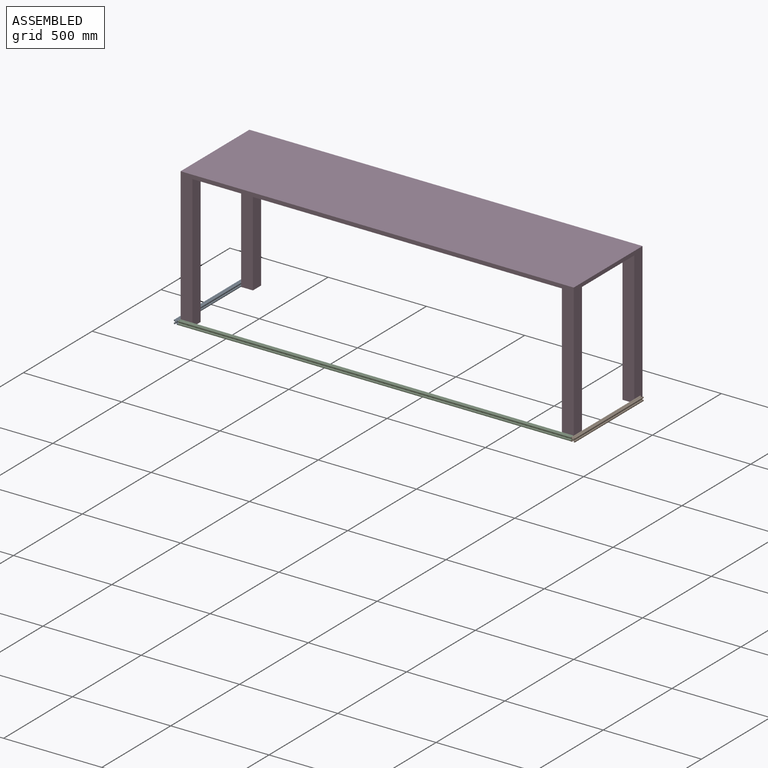
[diagram: assembled view]
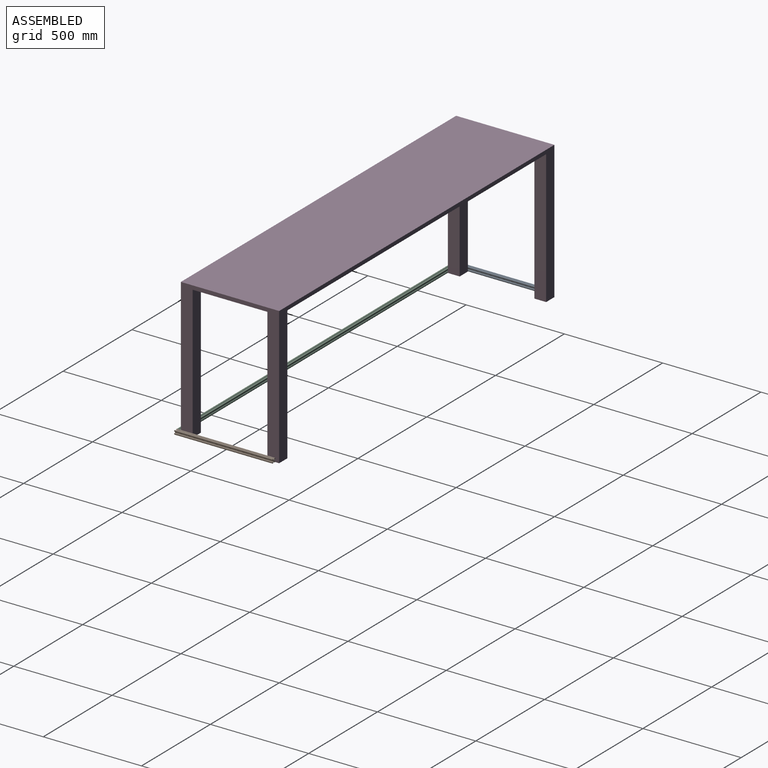
[diagram: assembled view, second angle]
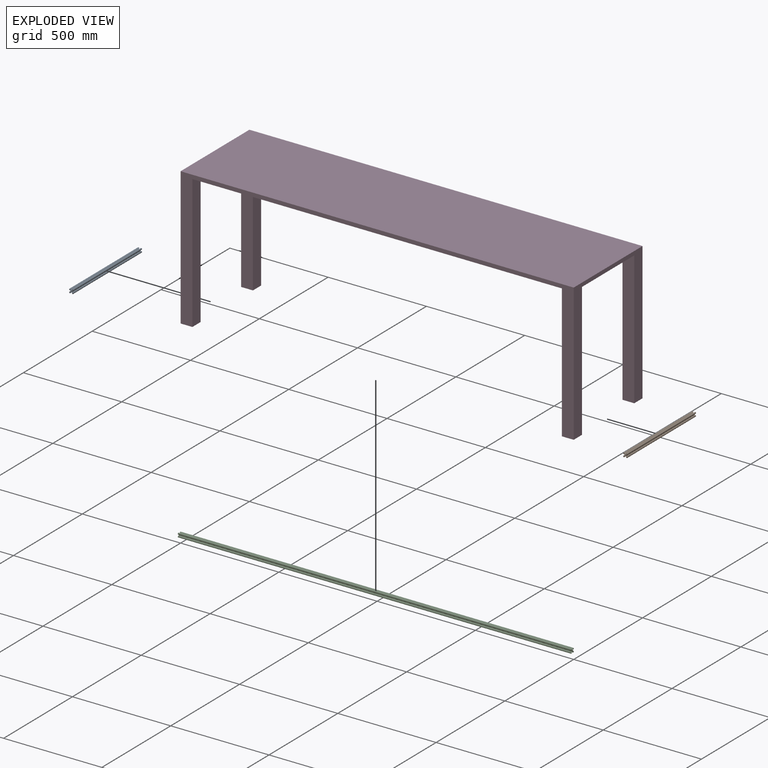
[diagram: exploded view]
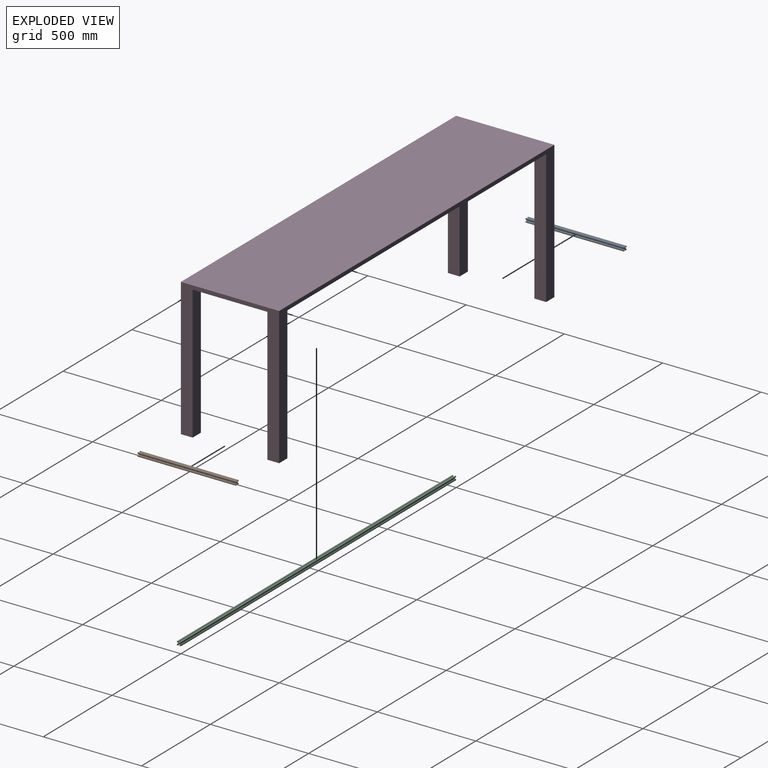
[diagram: exploded view, second angle]
ASSEMBLY  parts=4 mates=9
PART A: 63 faces, bbox 20x500x20 mm
  f0: plane 500x1.68mm, normal (0.71,0,0.71), area 1184.4mm2, adj f1,f16,f26,f62
  f1: plane 500x3.73mm, normal (0,0,1), area 1862.5mm2, adj f0,f16,f30,f62
  f2: plane 500x3.73mm, normal (-1,0,0), area 1862.5mm2, adj f3,f16,f30,f62
  f3: plane 500x1.68mm, normal (-0.71,0,-0.71), area 1184.4mm2, adj f2,f16,f27,f62
  f4: plane 500x1.68mm, normal (-0.71,0,0.71), area 1184.4mm2, adj f5,f16,f34,f62
  f5: plane 500x3.73mm, normal (-1,0,0), area 1862.5mm2, adj f4,f16,f38,f62
  f6: plane 500x3.73mm, normal (0,0,-1), area 1862.5mm2, adj f7,f16,f38,f62
  f7: plane 500x1.68mm, normal (0.71,0,-0.71), area 1184.4mm2, adj f6,f16,f35,f62
  f8: plane 500x1.68mm, normal (-0.71,0,-0.71), area 1184.4mm2, adj f9,f16,f42,f62
  f9: plane 500x3.73mm, normal (0,0,-1), area 1862.5mm2, adj f8,f16,f46,f62
  f10: plane 500x3.73mm, normal (1,0,0), area 1862.5mm2, adj f11,f16,f46,f62
  f11: plane 500x1.68mm, normal (0.71,0,0.71), area 1184.4mm2, adj f10,f16,f43,f62
  f12: plane 500x1.68mm, normal (0.71,0,-0.71), area 1184.4mm2, adj f13,f16,f49,f62
  f13: plane 500x3.73mm, normal (1,0,0), area 1862.5mm2, adj f12,f16,f53,f62
  f14: plane 500x3.73mm, normal (0,0,1), area 1862.5mm2, adj f15,f16,f53,f62
  f15: plane 500x1.68mm, normal (-0.71,0,0.71), area 1184.4mm2, adj f14,f16,f50,f62
  f16: plane 20x20mm, normal (0,-1,0), area 164.7mm2, adj f0,f1,f2,f3,f4,f5,f6,f7
  f17: plane 500x2.54mm, normal (1,0,0), area 1270mm2, adj f16,f47,f61,f62
  f18: plane 500x2.54mm, normal (0,0,-1), area 1270mm2, adj f16,f40,f59,f62
  f19: plane 500x2.54mm, normal (-1,0,0), area 1270mm2, adj f16,f32,f57,f62
  f20: plane 500x2.54mm, normal (0,0,1), area 1270mm2, adj f16,f52,f54,f62
  f21: plane 500x2.54mm, normal (-1,0,0), area 1270mm2, adj f16,f29,f56,f62
  f22: cylinder r=2.1mm len=500mm, axis (0,-1,0), area 6597.3mm2, adj f16,f62
  f23: plane 500x2.54mm, normal (0,0,1), area 1270mm2, adj f16,f24,f55,f62
  f24: plane 500x2.66mm, normal (0.71,0,0.71), area 1880.9mm2, adj f16,f23,f25,f62
  f25: plane 500x1.76mm, normal (1,0,0), area 882.2mm2, adj f16,f24,f26,f62
  f26: plane 500x2.4mm, normal (0,0,-1), area 1200mm2, adj f0,f16,f25,f62
  f27: plane 500x2.4mm, normal (1,0,0), area 1200mm2, adj f3,f16,f28,f62
  f28: plane 500x1.76mm, normal (0,0,-1), area 882.2mm2, adj f16,f27,f29,f62
  f29: plane 500x2.66mm, normal (-0.71,0,-0.71), area 1880.9mm2, adj f16,f21,f28,f62
  f30: cylinder r=1.5mm len=500mm, axis (0,1,0), area 1178.1mm2, adj f1,f2,f16,f62
  f31: plane 500x2.54mm, normal (0,0,-1), area 1270mm2, adj f16,f37,f58,f62
  f32: plane 500x2.66mm, normal (-0.71,0,0.71), area 1880.9mm2, adj f16,f19,f33,f62
  f33: plane 500x1.76mm, normal (0,0,1), area 882.2mm2, adj f16,f32,f34,f62
  f34: plane 500x2.4mm, normal (1,0,0), area 1200mm2, adj f4,f16,f33,f62
  f35: plane 500x2.4mm, normal (0,0,1), area 1200mm2, adj f7,f16,f36,f62
  f36: plane 500x1.76mm, normal (1,0,0), area 882.2mm2, adj f16,f35,f37,f62
  f37: plane 500x2.66mm, normal (0.71,0,-0.71), area 1880.9mm2, adj f16,f31,f36,f62
  f38: cylinder r=1.5mm len=500mm, axis (0,1,0), area 1178.1mm2, adj f5,f6,f16,f62
  f39: plane 500x2.54mm, normal (1,0,0), area 1270mm2, adj f16,f45,f60,f62
  f40: plane 500x2.66mm, normal (-0.71,0,-0.71), area 1880.9mm2, adj f16,f18,f41,f62
  f41: plane 500x1.76mm, normal (-1,0,0), area 882.2mm2, adj f16,f40,f42,f62
  f42: plane 500x2.4mm, normal (0,0,1), area 1200mm2, adj f8,f16,f41,f62
  f43: plane 500x2.4mm, normal (-1,0,0), area 1200mm2, adj f11,f16,f44,f62
  f44: plane 500x1.76mm, normal (0,0,1), area 882.2mm2, adj f16,f43,f45,f62
  f45: plane 500x2.66mm, normal (0.71,0,0.71), area 1880.9mm2, adj f16,f39,f44,f62
  f46: cylinder r=1.5mm len=500mm, axis (0,1,0), area 1178.1mm2, adj f9,f10,f16,f62
  f47: plane 500x2.66mm, normal (0.71,0,-0.71), area 1880.9mm2, adj f16,f17,f48,f62
  f48: plane 500x1.76mm, normal (0,0,-1), area 882.2mm2, adj f16,f47,f49,f62
  f49: plane 500x2.4mm, normal (-1,0,0), area 1200mm2, adj f12,f16,f48,f62
  f50: plane 500x2.4mm, normal (0,0,-1), area 1200mm2, adj f15,f16,f51,f62
  f51: plane 500x1.76mm, normal (-1,0,0), area 882.2mm2, adj f16,f50,f52,f62
  f52: plane 500x2.66mm, normal (-0.71,0,0.71), area 1880.9mm2, adj f16,f20,f51,f62
  f53: cylinder r=1.5mm len=500mm, axis (0,1,0), area 1178.1mm2, adj f13,f14,f16,f62
  f54: plane 500x0.3mm, normal (-0.71,0,0.71), area 212.1mm2, adj f16,f20,f55,f62
  f55: plane 500x0.3mm, normal (0.71,0,0.71), area 212.1mm2, adj f16,f23,f54,f62
  f56: plane 500x0.3mm, normal (-0.71,0,-0.71), area 212.1mm2, adj f16,f21,f57,f62
  f57: plane 500x0.3mm, normal (-0.71,0,0.71), area 212.1mm2, adj f16,f19,f56,f62
  f58: plane 500x0.3mm, normal (0.71,0,-0.71), area 212.1mm2, adj f16,f31,f59,f62
  f59: plane 500x0.3mm, normal (-0.71,0,-0.71), area 212.1mm2, adj f16,f18,f58,f62
  f60: plane 500x0.3mm, normal (0.71,0,0.71), area 212.1mm2, adj f16,f39,f61,f62
  f61: plane 500x0.3mm, normal (0.71,0,-0.71), area 212.1mm2, adj f16,f17,f60,f62
  f62: plane 20x20mm, normal (0,1,0), area 164.7mm2, adj f0,f1,f2,f3,f4,f5,f6,f7
PART B: same geometry as A
PART C: 63 faces, bbox 20x2000x20 mm
  f0: plane 20x20mm, normal (0,-1,0), area 164.7mm2, adj f1,f2,f3,f4,f5,f6,f7,f8
  f1: plane 2000x2.54mm, normal (1,0,0), area 5080mm2, adj f0,f43,f61,f62
  f2: plane 2000x2.54mm, normal (0,0,-1), area 5080mm2, adj f0,f32,f59,f62
  f3: plane 2000x2.54mm, normal (-1,0,0), area 5080mm2, adj f0,f20,f57,f62
  f4: plane 2000x2.54mm, normal (0,0,1), area 5080mm2, adj f0,f52,f54,f62
  f5: plane 2000x2.54mm, normal (-1,0,0), area 5080mm2, adj f0,f17,f56,f62
  f6: cylinder r=2.1mm len=2000mm, axis (0,-1,0), area 26389.4mm2, adj f0,f62
  f7: plane 2000x2.54mm, normal (0,0,1), area 5080mm2, adj f0,f8,f55,f62
  f8: plane 2000x2.66mm, normal (0.71,0,0.71), area 7523.6mm2, adj f0,f7,f9,f62
  f9: plane 2000x1.76mm, normal (1,0,0), area 3528.7mm2, adj f0,f8,f10,f62
  f10: plane 2000x2.4mm, normal (0,0,-1), area 4800mm2, adj f0,f9,f11,f62
  f11: plane 2000x1.68mm, normal (0.71,0,0.71), area 4737.6mm2, adj f0,f10,f12,f62
  f12: plane 2000x3.73mm, normal (0,0,1), area 7450mm2, adj f0,f11,f18,f62
  f13: plane 2000x3.73mm, normal (-1,0,0), area 7450mm2, adj f0,f14,f18,f62
  f14: plane 2000x1.68mm, normal (-0.71,0,-0.71), area 4737.6mm2, adj f0,f13,f15,f62
  f15: plane 2000x2.4mm, normal (1,0,0), area 4800mm2, adj f0,f14,f16,f62
  f16: plane 2000x1.76mm, normal (0,0,-1), area 3528.7mm2, adj f0,f15,f17,f62
  f17: plane 2000x2.66mm, normal (-0.71,0,-0.71), area 7523.6mm2, adj f0,f5,f16,f62
  f18: cylinder r=1.5mm len=2000mm, axis (0,1,0), area 4712.4mm2, adj f0,f12,f13,f62
  f19: plane 2000x2.54mm, normal (0,0,-1), area 5080mm2, adj f0,f29,f58,f62
  f20: plane 2000x2.66mm, normal (-0.71,0,0.71), area 7523.6mm2, adj f0,f3,f21,f62
  f21: plane 2000x1.76mm, normal (0,0,1), area 3528.7mm2, adj f0,f20,f22,f62
  f22: plane 2000x2.4mm, normal (1,0,0), area 4800mm2, adj f0,f21,f23,f62
  f23: plane 2000x1.68mm, normal (-0.71,0,0.71), area 4737.6mm2, adj f0,f22,f24,f62
  f24: plane 2000x3.73mm, normal (-1,0,0), area 7450mm2, adj f0,f23,f30,f62
  f25: plane 2000x3.73mm, normal (0,0,-1), area 7450mm2, adj f0,f26,f30,f62
  f26: plane 2000x1.68mm, normal (0.71,0,-0.71), area 4737.6mm2, adj f0,f25,f27,f62
  f27: plane 2000x2.4mm, normal (0,0,1), area 4800mm2, adj f0,f26,f28,f62
  f28: plane 2000x1.76mm, normal (1,0,0), area 3528.7mm2, adj f0,f27,f29,f62
  f29: plane 2000x2.66mm, normal (0.71,0,-0.71), area 7523.6mm2, adj f0,f19,f28,f62
  f30: cylinder r=1.5mm len=2000mm, axis (0,1,0), area 4712.4mm2, adj f0,f24,f25,f62
  f31: plane 2000x2.54mm, normal (1,0,0), area 5080mm2, adj f0,f41,f60,f62
  f32: plane 2000x2.66mm, normal (-0.71,0,-0.71), area 7523.6mm2, adj f0,f2,f33,f62
  f33: plane 2000x1.76mm, normal (-1,0,0), area 3528.7mm2, adj f0,f32,f34,f62
  f34: plane 2000x2.4mm, normal (0,0,1), area 4800mm2, adj f0,f33,f35,f62
  f35: plane 2000x1.68mm, normal (-0.71,0,-0.71), area 4737.6mm2, adj f0,f34,f36,f62
  f36: plane 2000x3.73mm, normal (0,0,-1), area 7450mm2, adj f0,f35,f42,f62
  f37: plane 2000x3.73mm, normal (1,0,0), area 7450mm2, adj f0,f38,f42,f62
  f38: plane 2000x1.68mm, normal (0.71,0,0.71), area 4737.6mm2, adj f0,f37,f39,f62
  f39: plane 2000x2.4mm, normal (-1,0,0), area 4800mm2, adj f0,f38,f40,f62
  f40: plane 2000x1.76mm, normal (0,0,1), area 3528.7mm2, adj f0,f39,f41,f62
  f41: plane 2000x2.66mm, normal (0.71,0,0.71), area 7523.6mm2, adj f0,f31,f40,f62
  f42: cylinder r=1.5mm len=2000mm, axis (0,1,0), area 4712.4mm2, adj f0,f36,f37,f62
  f43: plane 2000x2.66mm, normal (0.71,0,-0.71), area 7523.6mm2, adj f0,f1,f44,f62
  f44: plane 2000x1.76mm, normal (0,0,-1), area 3528.7mm2, adj f0,f43,f45,f62
  f45: plane 2000x2.4mm, normal (-1,0,0), area 4800mm2, adj f0,f44,f46,f62
  f46: plane 2000x1.68mm, normal (0.71,0,-0.71), area 4737.6mm2, adj f0,f45,f47,f62
  f47: plane 2000x3.73mm, normal (1,0,0), area 7450mm2, adj f0,f46,f53,f62
  f48: plane 2000x3.73mm, normal (0,0,1), area 7450mm2, adj f0,f49,f53,f62
  f49: plane 2000x1.68mm, normal (-0.71,0,0.71), area 4737.6mm2, adj f0,f48,f50,f62
  f50: plane 2000x2.4mm, normal (0,0,-1), area 4800mm2, adj f0,f49,f51,f62
  f51: plane 2000x1.76mm, normal (-1,0,0), area 3528.7mm2, adj f0,f50,f52,f62
  f52: plane 2000x2.66mm, normal (-0.71,0,0.71), area 7523.6mm2, adj f0,f4,f51,f62
  f53: cylinder r=1.5mm len=2000mm, axis (0,1,0), area 4712.4mm2, adj f0,f47,f48,f62
  f54: plane 2000x0.3mm, normal (-0.71,0,0.71), area 848.5mm2, adj f0,f4,f55,f62
  f55: plane 2000x0.3mm, normal (0.71,0,0.71), area 848.5mm2, adj f0,f7,f54,f62
  f56: plane 2000x0.3mm, normal (-0.71,0,-0.71), area 848.5mm2, adj f0,f5,f57,f62
  f57: plane 2000x0.3mm, normal (-0.71,0,0.71), area 848.5mm2, adj f0,f3,f56,f62
  f58: plane 2000x0.3mm, normal (0.71,0,-0.71), area 848.5mm2, adj f0,f19,f59,f62
  f59: plane 2000x0.3mm, normal (-0.71,0,-0.71), area 848.5mm2, adj f0,f2,f58,f62
  f60: plane 2000x0.3mm, normal (0.71,0,0.71), area 848.5mm2, adj f0,f31,f61,f62
  f61: plane 2000x0.3mm, normal (0.71,0,-0.71), area 848.5mm2, adj f0,f1,f60,f62
  f62: plane 20x20mm, normal (0,1,0), area 164.7mm2, adj f1,f2,f3,f4,f5,f6,f7,f8
PART D: 18 faces, bbox 2000x500x700 mm
  f0: plane 2000x500mm, normal (0,0,-1), area 985600mm2, adj f1,f3,f4,f5,f7,f8,f9,f11
  f1: plane 700x500mm, normal (1,0,0), area 91600mm2, adj f0,f2,f4,f5,f10,f11,f15,f17
  f2: plane 2000x500mm, normal (0,0,1), area 1000000mm2, adj f1,f3,f4,f5
  f3: plane 700x500mm, normal (-1,0,0), area 91600mm2, adj f0,f2,f4,f5,f6,f8,f13,f14
  f4: plane 2000x700mm, normal (0,1,0), area 121600mm2, adj f0,f1,f2,f3,f12,f13,f15,f16
  f5: plane 2000x700mm, normal (0,-1,0), area 121600mm2, adj f0,f1,f2,f3,f6,f7,f9,f10
  f6: plane 60x60mm, normal (0,0,-1), area 3600mm2, adj f3,f5,f7,f8
  f7: plane 680x60mm, normal (1,0,0), area 40800mm2, adj f0,f5,f6,f8
  f8: plane 680x60mm, normal (0,1,0), area 40800mm2, adj f0,f3,f6,f7
  f9: plane 680x60mm, normal (-1,0,0), area 40800mm2, adj f0,f5,f10,f11
  f10: plane 60x60mm, normal (0,0,-1), area 3600mm2, adj f1,f5,f9,f11
  f11: plane 680x60mm, normal (0,1,0), area 40800mm2, adj f0,f1,f9,f10
  f12: plane 680x60mm, normal (1,0,0), area 40800mm2, adj f0,f4,f13,f14
  f13: plane 60x60mm, normal (0,0,-1), area 3600mm2, adj f3,f4,f12,f14
  f14: plane 680x60mm, normal (0,-1,0), area 40800mm2, adj f0,f3,f12,f13
  f15: plane 60x60mm, normal (0,0,-1), area 3600mm2, adj f1,f4,f16,f17
  f16: plane 680x60mm, normal (-1,0,0), area 40800mm2, adj f0,f4,f15,f17
  f17: plane 680x60mm, normal (0,-1,0), area 40800mm2, adj f0,f1,f15,f16
PLACE A t=(-10,-20,10)mm
PLACE B t=(2010,-20,10)mm
PLACE C rot(axis=(0.71,0.71,0),180deg) t=(0,-10,10)mm
PLACE D t=(1000,0,0)mm
MATE planar A.f13 <-> D.f3  axis (1,0,0) through (0,230,16.64)mm
MATE planar D.f6 <-> C.f12  axis (0,0,-1) through (30,30,0)mm
MATE planar A.f6 <-> D.f6  axis (0,0,-1) through (-16.64,230,0)mm
MATE planar A.f30 <-> C.f13  axis (0,-1,0) through (-18.5,-20,18.5)mm
MATE planar B.f9 <-> D.f10  axis (0,0,-1) through (2016.64,230,0)mm
MATE planar D.f5 <-> C.f37  axis (0,-1,0) through (30,0,0)mm
MATE planar C.f0 <-> D.f3  axis (-1,0,0) through (0,-6.1,8.43)mm
MATE planar B.f16 <-> C.f13  axis (0,-1,0) through (2004.5,-20,18.33)mm
MATE planar B.f2 <-> D.f1  axis (-1,0,0) through (2000,230,16.64)mm
